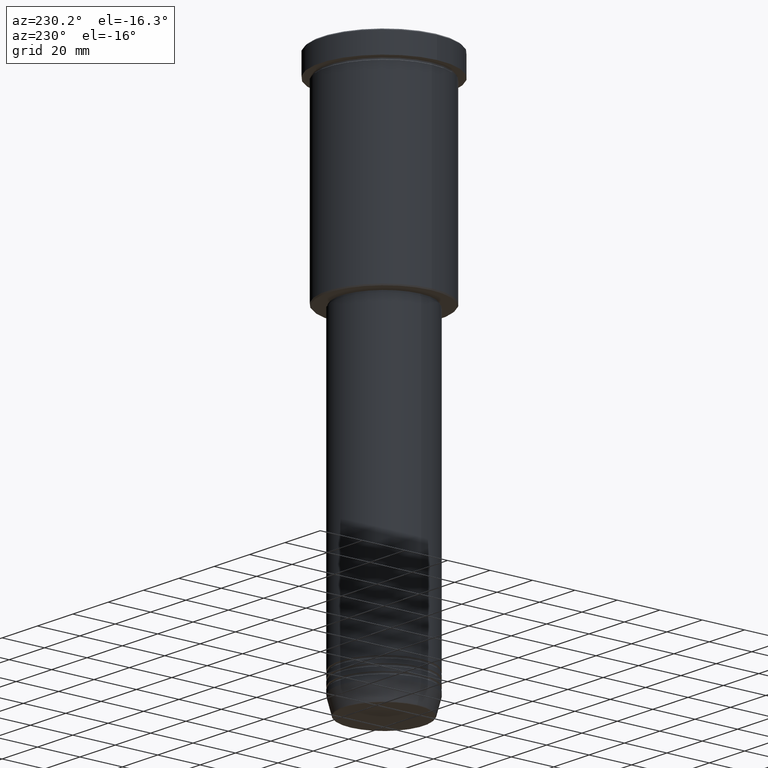
[diagram: clean part render]
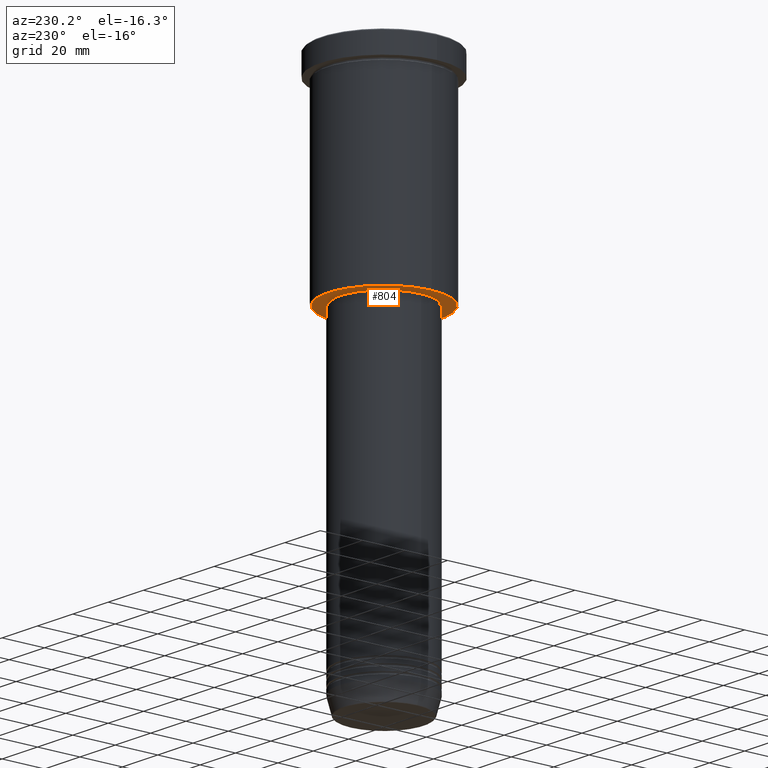
[diagram: same view with one face highlighted and labeled with its STEP entity id]
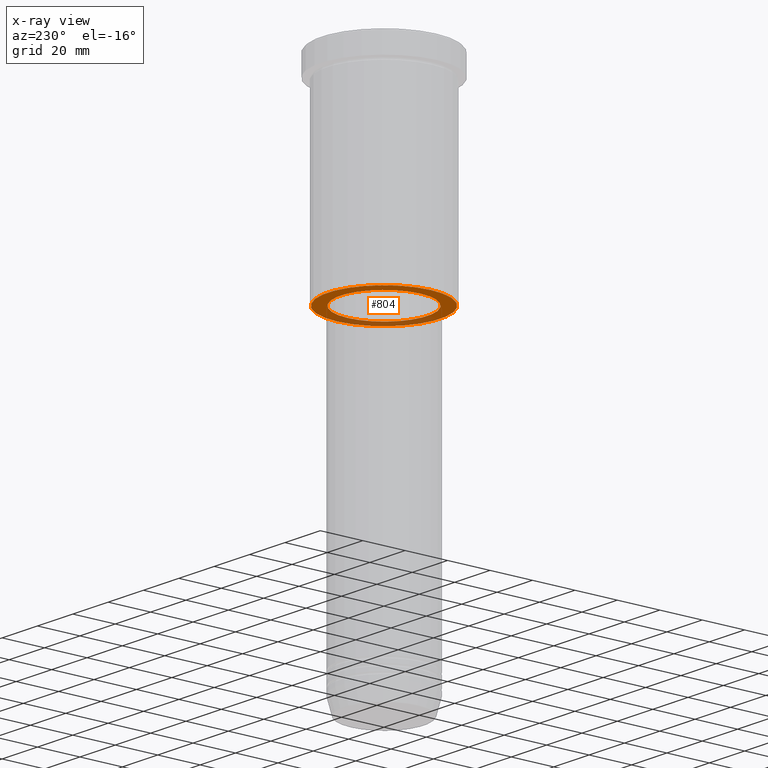
[diagram: x-ray of the same camera — body ghosted, the highlighted face saturated]
A machine part, auxiliary view. The second image highlights one B-rep face of the part: STEP entity #804.
The next image is the same camera in x-ray: the body ghosted, the highlighted face saturated — about 27% of this face is hidden behind the body in this view.
In plain terms, the highlighted planar face has unit normal (0, 0, -1).
Its self-contained STEP definition (entity closure, byte-faithful):
#39 = EDGE_LOOP ( 'NONE', ( #1153, #350 ) ) ;
#43 = EDGE_LOOP ( 'NONE', ( #649, #973 ) ) ;
#77 = CIRCLE ( 'NONE', #943, 26.50000000000002487 ) ;
#100 = CARTESIAN_POINT ( 'NONE',  ( 0.000000000000000000, 0.000000000000000000, -96.00000000000000000 ) ) ;
#113 = CARTESIAN_POINT ( 'NONE',  ( 26.50000000000002487, 0.000000000000000000, -96.00000000000000000 ) ) ;
#135 = DIRECTION ( 'NONE',  ( 0.000000000000000000, 0.000000000000000000, -1.000000000000000000 ) ) ;
#147 = AXIS2_PLACEMENT_3D ( 'NONE', #100, #579, #460 ) ;
#152 = CARTESIAN_POINT ( 'NONE',  ( 0.000000000000000000, 0.000000000000000000, -96.00000000000000000 ) ) ;
#159 = EDGE_CURVE ( 'NONE', #928, #680, #434, .T. ) ;
#197 = VERTEX_POINT ( 'NONE', #113 ) ;
#299 = DIRECTION ( 'NONE',  ( 1.000000000000000000, 0.000000000000000000, 0.000000000000000000 ) ) ;
#340 = EDGE_CURVE ( 'NONE', #197, #876, #77, .T. ) ;
#349 = CARTESIAN_POINT ( 'NONE',  ( 20.50000000000000000, 0.000000000000000000, -96.00000000000000000 ) ) ;
#350 = ORIENTED_EDGE ( 'NONE', *, *, #650, .T. ) ;
#378 = CIRCLE ( 'NONE', #1026, 26.50000000000002487 ) ;
#379 = DIRECTION ( 'NONE',  ( -1.000000000000000000, 0.000000000000000000, 0.000000000000000000 ) ) ;
#404 = DIRECTION ( 'NONE',  ( -1.000000000000000000, 0.000000000000000000, -0.000000000000000000 ) ) ;
#413 = DIRECTION ( 'NONE',  ( -1.000000000000000000, 0.000000000000000000, 0.000000000000000000 ) ) ;
#434 = CIRCLE ( 'NONE', #1067, 20.50000000000000000 ) ;
#460 = DIRECTION ( 'NONE',  ( 1.000000000000000000, 0.000000000000000000, 0.000000000000000000 ) ) ;
#487 = DIRECTION ( 'NONE',  ( -0.000000000000000000, -0.000000000000000000, 1.000000000000000000 ) ) ;
#562 = CARTESIAN_POINT ( 'NONE',  ( 0.000000000000000000, 0.000000000000000000, -96.00000000000000000 ) ) ;
#579 = DIRECTION ( 'NONE',  ( -0.000000000000000000, -0.000000000000000000, 1.000000000000000000 ) ) ;
#583 = FACE_BOUND ( 'NONE', #39, .T. ) ;
#649 = ORIENTED_EDGE ( 'NONE', *, *, #340, .T. ) ;
#650 = EDGE_CURVE ( 'NONE', #680, #928, #975, .T. ) ;
#664 = CARTESIAN_POINT ( 'NONE',  ( -20.50000000000000000, 2.510525938252074481E-15, -96.00000000000000000 ) ) ;
#680 = VERTEX_POINT ( 'NONE', #664 ) ;
#731 = AXIS2_PLACEMENT_3D ( 'NONE', #883, #135, #404 ) ;
#734 = EDGE_CURVE ( 'NONE', #876, #197, #378, .T. ) ;
#766 = CARTESIAN_POINT ( 'NONE',  ( 0.000000000000000000, 0.000000000000000000, -96.00000000000000000 ) ) ;
#804 = ADVANCED_FACE ( 'NONE', ( #1060, #583 ), #1053, .T. ) ;
#876 = VERTEX_POINT ( 'NONE', #895 ) ;
#883 = CARTESIAN_POINT ( 'NONE',  ( 0.000000000000000000, 27.00000000000000355, -96.00000000000000000 ) ) ;
#888 = DIRECTION ( 'NONE',  ( 0.000000000000000000, 0.000000000000000000, -1.000000000000000000 ) ) ;
#895 = CARTESIAN_POINT ( 'NONE',  ( -26.50000000000002487, 3.275930187719171524E-15, -96.00000000000000000 ) ) ;
#928 = VERTEX_POINT ( 'NONE', #349 ) ;
#933 = DIRECTION ( 'NONE',  ( 0.000000000000000000, 0.000000000000000000, -1.000000000000000000 ) ) ;
#943 = AXIS2_PLACEMENT_3D ( 'NONE', #152, #888, #413 ) ;
#973 = ORIENTED_EDGE ( 'NONE', *, *, #734, .T. ) ;
#975 = CIRCLE ( 'NONE', #147, 20.50000000000000000 ) ;
#1026 = AXIS2_PLACEMENT_3D ( 'NONE', #562, #933, #379 ) ;
#1053 = PLANE ( 'NONE',  #731 ) ;
#1060 = FACE_OUTER_BOUND ( 'NONE', #43, .T. ) ;
#1067 = AXIS2_PLACEMENT_3D ( 'NONE', #766, #487, #299 ) ;
#1153 = ORIENTED_EDGE ( 'NONE', *, *, #159, .T. ) ;